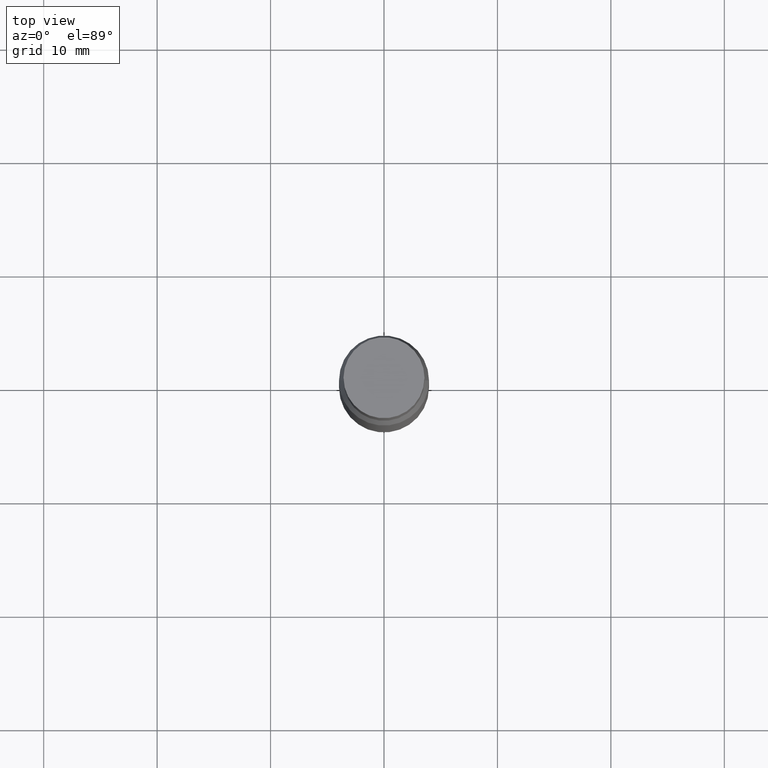
[diagram: clean part render]
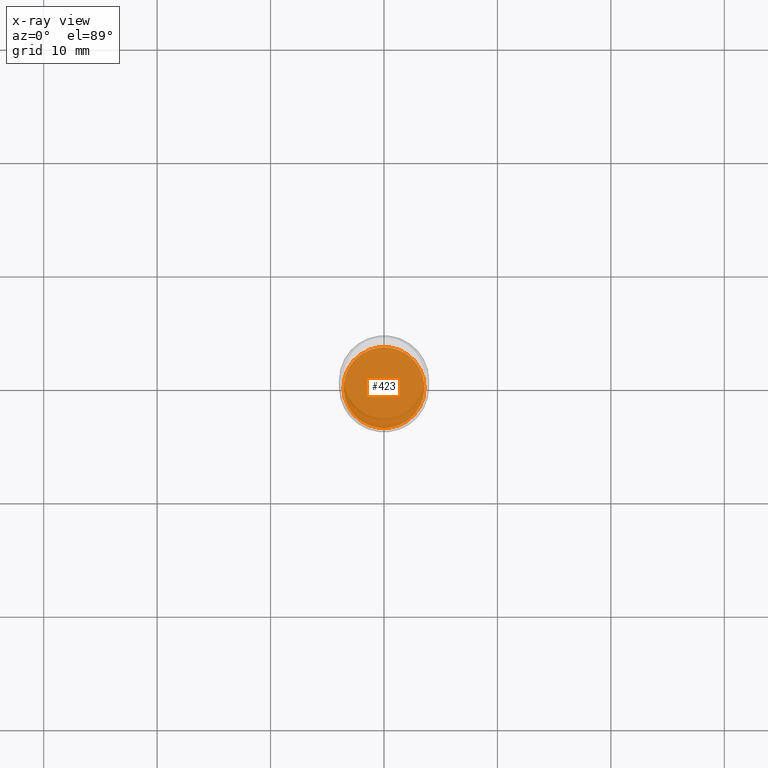
[diagram: x-ray — body ghosted, one internal face saturated and labeled with its STEP entity id]
A machine part, top view, then the same camera in x-ray: the body is ghosted and one INTERNAL B-rep face — a face not visible from any outside direction — is saturated and labeled: STEP entity #423.
In plain terms, the highlighted planar face has unit normal (0, -0, -1).
Its self-contained STEP definition (entity closure, byte-faithful):
#16 = CARTESIAN_POINT ( 'NONE',  ( -0.1406000000000000028, -6.856809925918377173E-15, -2.000000000000000444 ) ) ;
#71 = AXIS2_PLACEMENT_3D ( 'NONE', #890, #121, #419 ) ;
#108 = FACE_OUTER_BOUND ( 'NONE', #315, .T. ) ;
#117 = CARTESIAN_POINT ( 'NONE',  ( 9.818045524827378180E-16, 0.1405999999999930083, -2.000000000000000444 ) ) ;
#121 = DIRECTION ( 'NONE',  ( -2.445468806185136597E-29, 3.491481338843145583E-15, 1.000000000000000000 ) ) ;
#126 = ORIENTED_EDGE ( 'NONE', *, *, #930, .T. ) ;
#215 = CIRCLE ( 'NONE', #71, 0.1406000000000000028 ) ;
#250 = PLANE ( 'NONE',  #433 ) ;
#270 = CARTESIAN_POINT ( 'NONE',  ( 4.890937612370273754E-29, -6.982962677686291954E-15, -2.000000000000000444 ) ) ;
#283 = DIRECTION ( 'NONE',  ( -2.445468806185136597E-29, 3.491481338843145583E-15, 1.000000000000000000 ) ) ;
#288 = AXIS2_PLACEMENT_3D ( 'NONE', #270, #283, #442 ) ;
#296 = VERTEX_POINT ( 'NONE', #16 ) ;
#315 = EDGE_LOOP ( 'NONE', ( #126, #520 ) ) ;
#332 = CARTESIAN_POINT ( 'NONE',  ( 0.1406000000000000028, -7.964767230168980271E-15, -2.000000000000000444 ) ) ;
#417 = DIRECTION ( 'NONE',  ( 2.438088387897960049E-29, -3.491481338843145188E-15, -1.000000000000000000 ) ) ;
#419 = DIRECTION ( 'NONE',  ( 1.000000000000000000, -6.982962677686265133E-15, 0.000000000000000000 ) ) ;
#422 = VERTEX_POINT ( 'NONE', #332 ) ;
#423 = ADVANCED_FACE ( 'NONE', ( #108 ), #250, .F. ) ;
#433 = AXIS2_PLACEMENT_3D ( 'NONE', #117, #417, #933 ) ;
#442 = DIRECTION ( 'NONE',  ( 1.000000000000000000, -6.982962677686265133E-15, 0.000000000000000000 ) ) ;
#520 = ORIENTED_EDGE ( 'NONE', *, *, #892, .T. ) ;
#592 = CIRCLE ( 'NONE', #288, 0.1406000000000000028 ) ;
#890 = CARTESIAN_POINT ( 'NONE',  ( 4.890937612370273754E-29, -6.982962677686291954E-15, -2.000000000000000444 ) ) ;
#892 = EDGE_CURVE ( 'NONE', #296, #422, #215, .T. ) ;
#930 = EDGE_CURVE ( 'NONE', #422, #296, #592, .T. ) ;
#933 = DIRECTION ( 'NONE',  ( -1.000000000000000000, 6.982962677686265922E-15, -4.876176775795935793E-29 ) ) ;